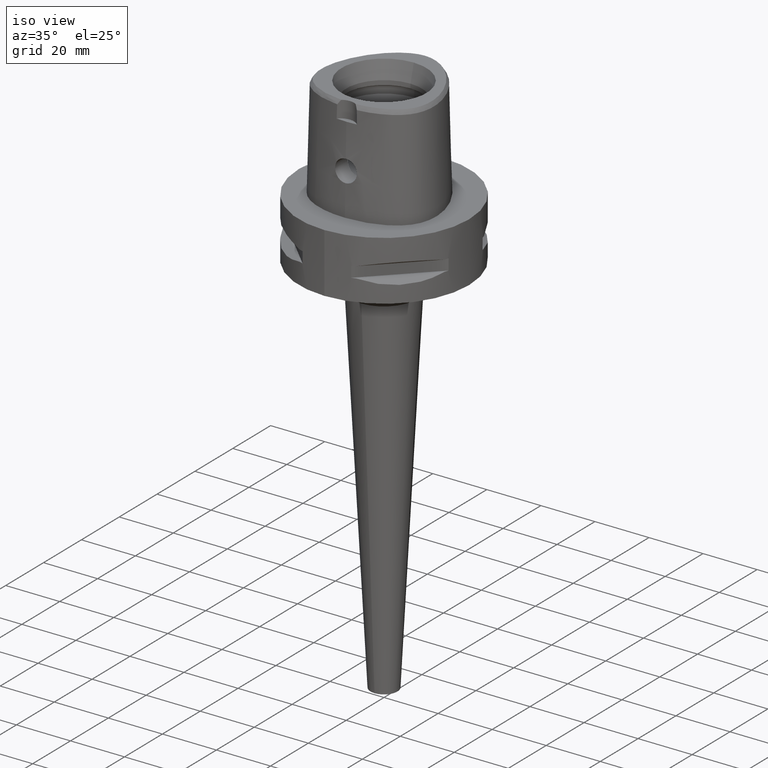
[diagram: clean part render]
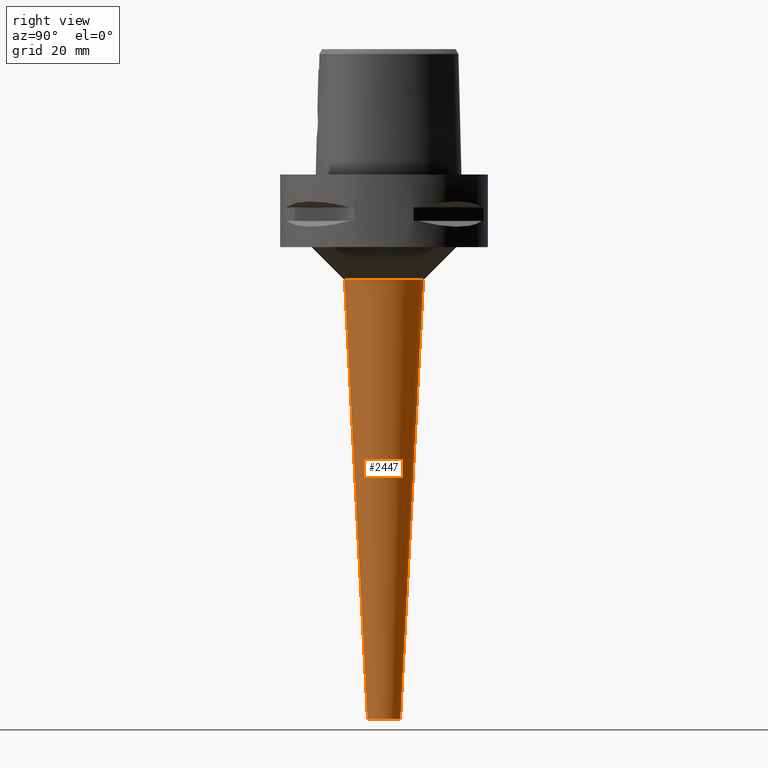
[diagram: tour spotlight — one face highlighted and labeled with its STEP entity id]
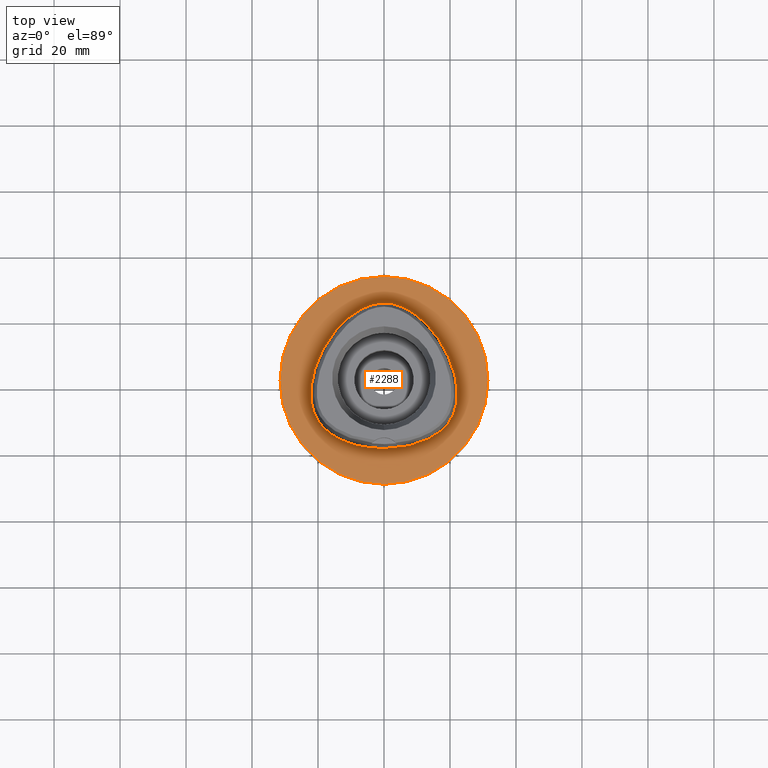
[diagram: tour spotlight — one face highlighted and labeled with its STEP entity id]
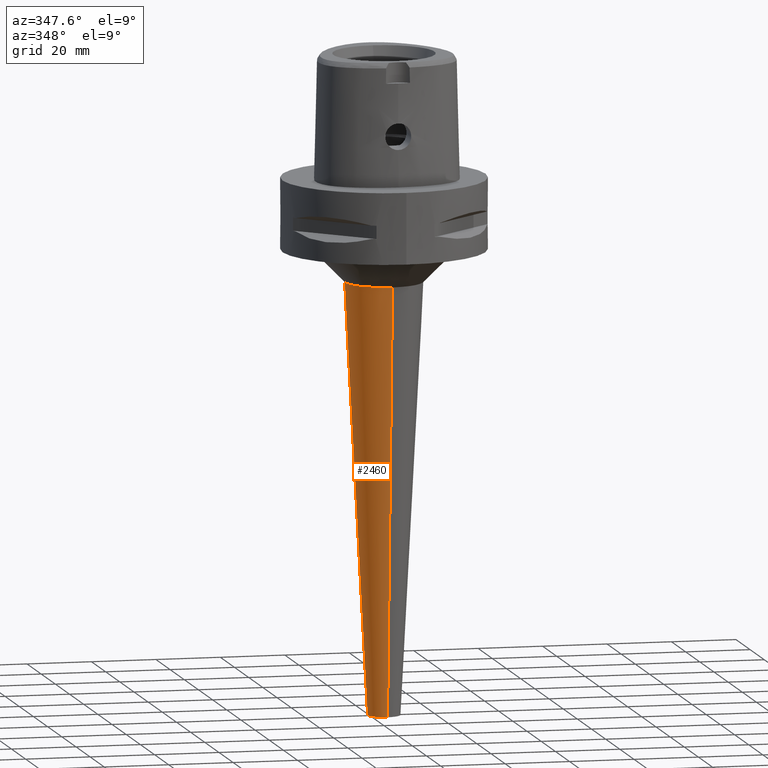
[diagram: tour spotlight — one face highlighted and labeled with its STEP entity id]
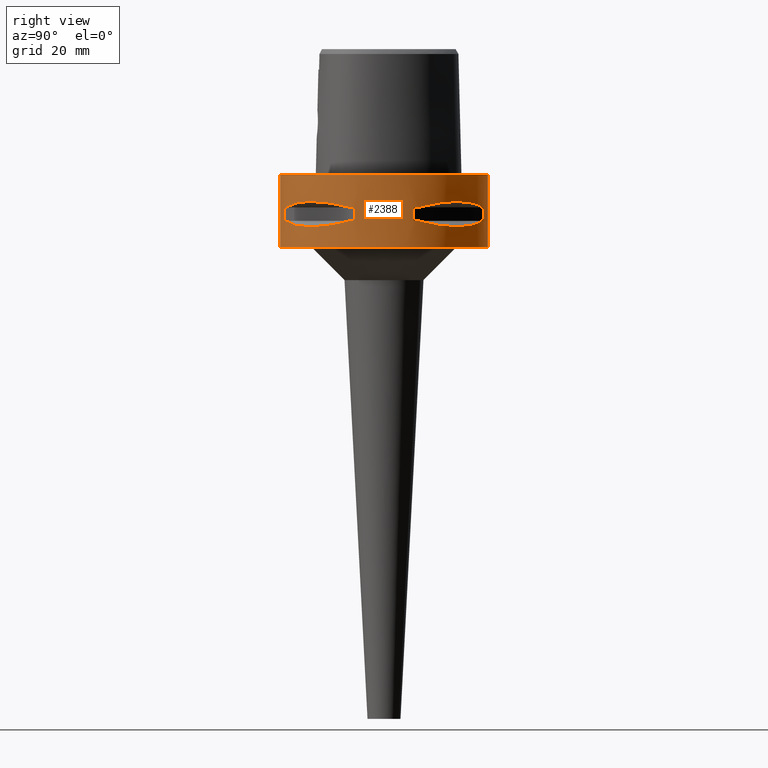
[diagram: tour spotlight — one face highlighted and labeled with its STEP entity id]
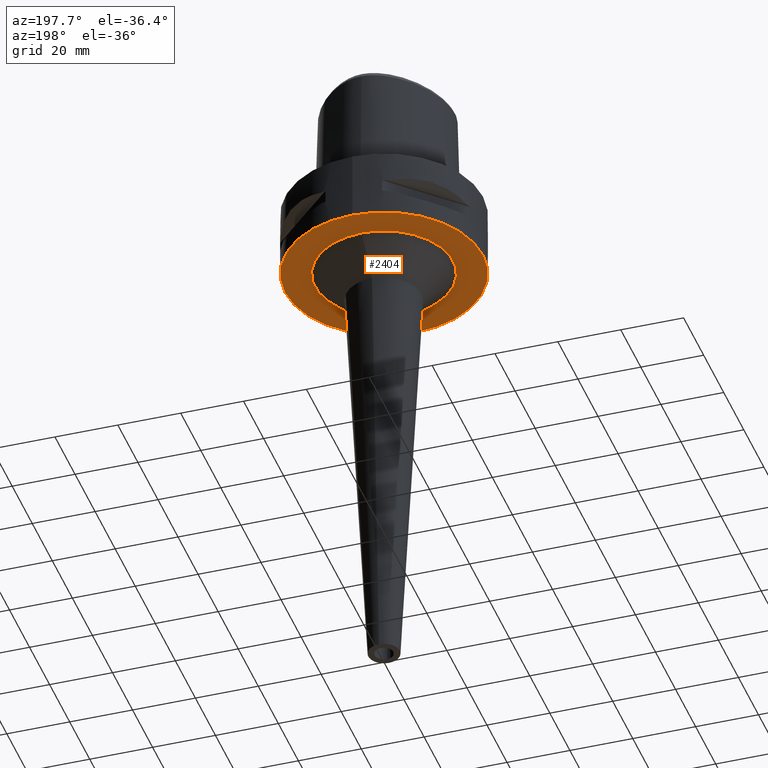
[diagram: tour spotlight — one face highlighted and labeled with its STEP entity id]
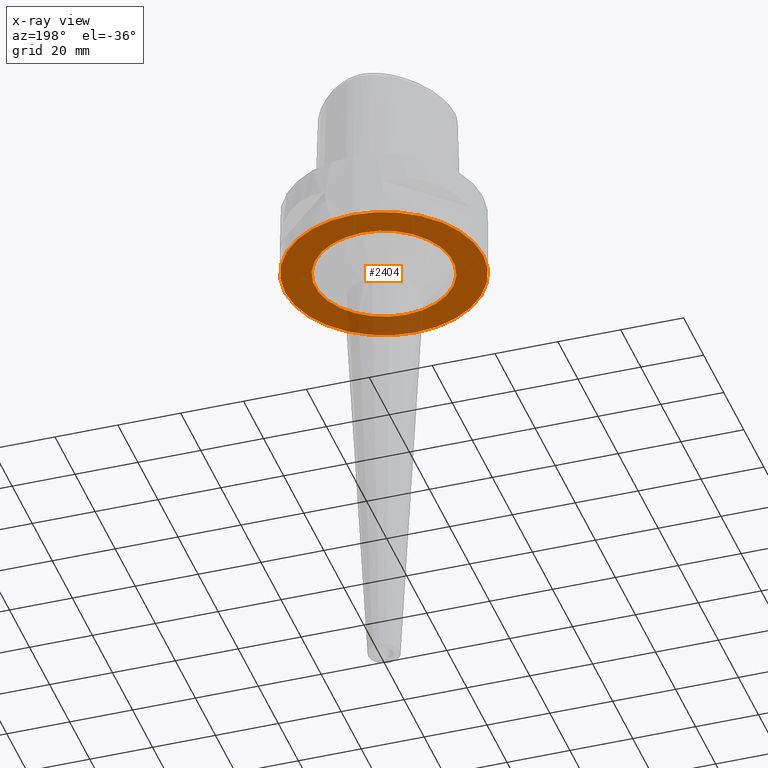
[diagram: x-ray of the same camera — body ghosted, this tour face saturated]
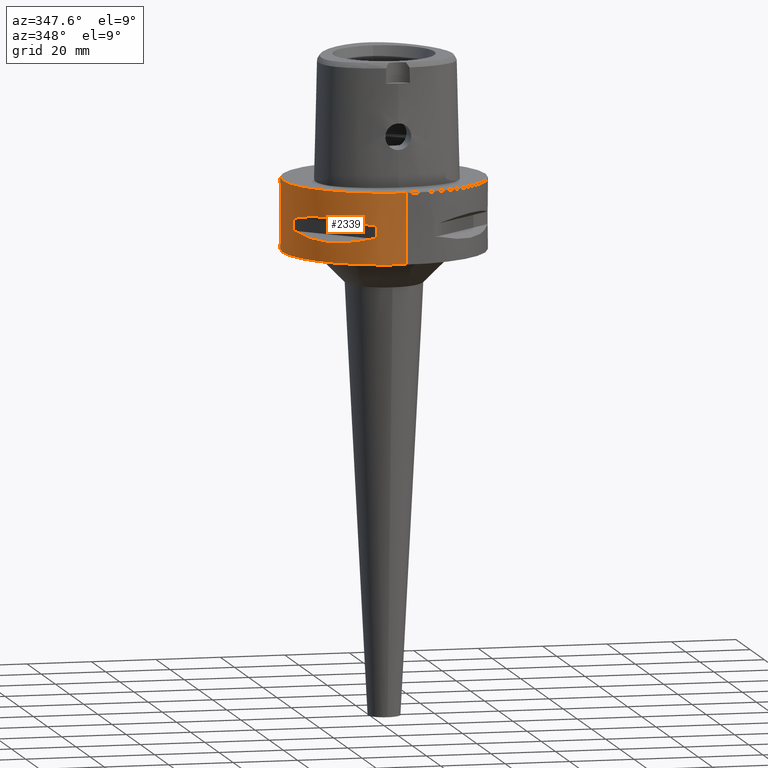
[diagram: tour spotlight — one face highlighted and labeled with its STEP entity id]
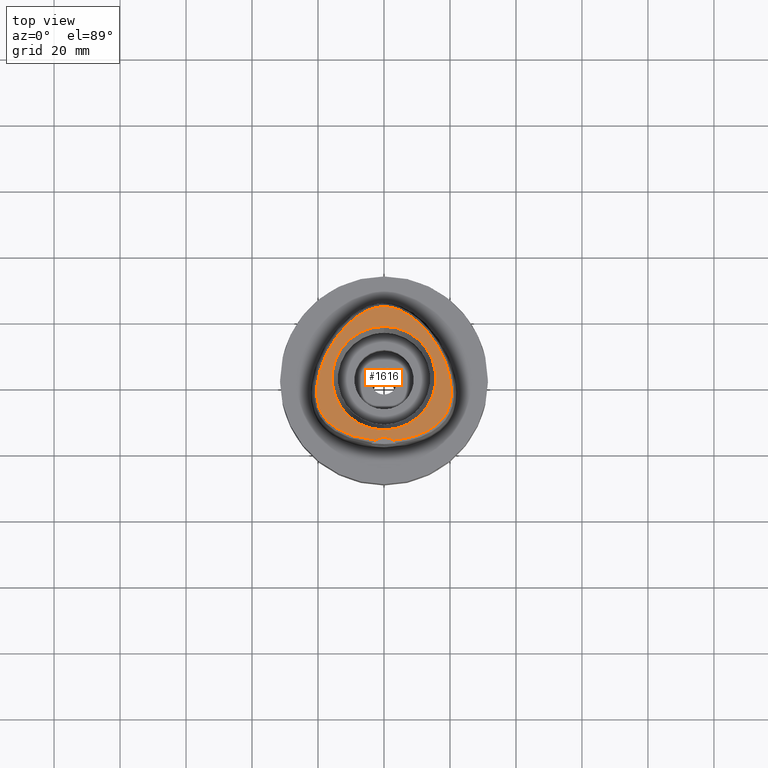
[diagram: tour spotlight — one face highlighted and labeled with its STEP entity id]
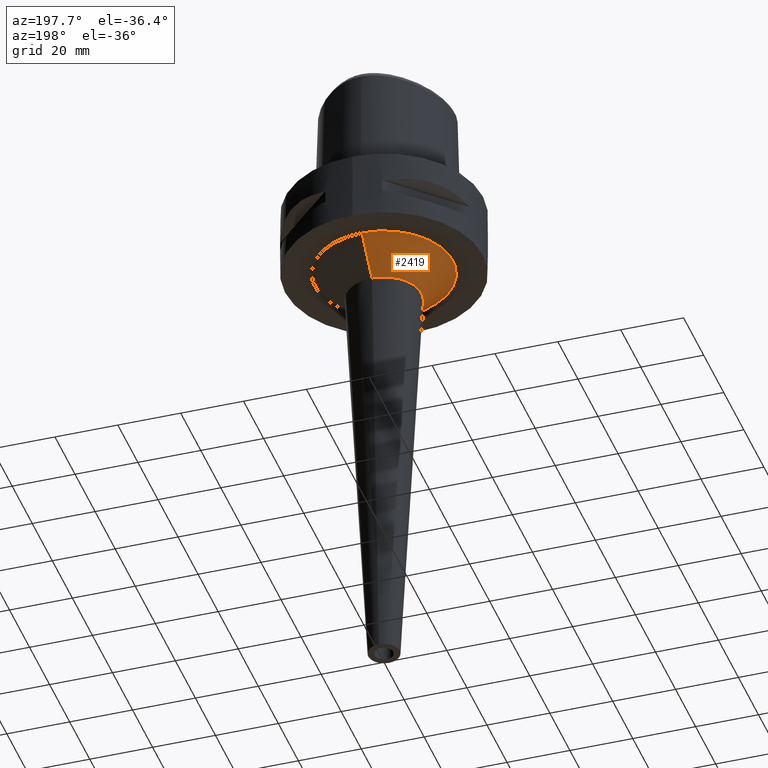
[diagram: tour spotlight — one face highlighted and labeled with its STEP entity id]
A machine part: a face-by-face anatomy tour. The part has 65 B-rep faces; the first image is the clean iso view, then the 8 largest visible faces are spotlighted one at a time (largest first), each with its STEP entity span.

Face 1 — right view, entity #2447. In plain terms, the highlighted conical surface has half-angle 3 deg.
Definition (entity closure, byte-faithful):
#539=DIRECTION('',(0.E0,-5.233595624293E-2,-9.986295347546E-1));
#540=VECTOR('',#539,1.331825220177E2);
#541=CARTESIAN_POINT('',(0.E0,1.197023464464E1,-3.2E1));
#542=LINE('',#541,#540);
#546=CARTESIAN_POINT('',(0.E0,0.E0,-3.2E1));
#547=DIRECTION('',(0.E0,0.E0,1.E0));
#548=DIRECTION('',(0.E0,-1.E0,0.E0));
#549=AXIS2_PLACEMENT_3D('',#546,#547,#548);
#554=DIRECTION('',(0.E0,5.233595624293E-2,-9.986295347546E-1));
#555=VECTOR('',#554,1.331825220177E2);
#556=CARTESIAN_POINT('',(0.E0,-1.197023464464E1,-3.2E1));
#557=LINE('',#556,#555);
#561=CARTESIAN_POINT('',(0.E0,0.E0,-1.65E2));
#562=DIRECTION('',(0.E0,0.E0,1.E0));
#563=DIRECTION('',(0.E0,-1.E0,0.E0));
#564=AXIS2_PLACEMENT_3D('',#561,#562,#563);
#1522=CARTESIAN_POINT('',(0.E0,1.197023464464E1,-3.2E1));
#1523=VERTEX_POINT('',#1522);
#1524=CARTESIAN_POINT('',(0.E0,-1.197023464464E1,-3.2E1));
#1525=VERTEX_POINT('',#1524);
#1526=CARTESIAN_POINT('',(0.E0,5.E0,-1.65E2));
#1527=VERTEX_POINT('',#1526);
#1528=CARTESIAN_POINT('',(0.E0,-5.E0,-1.65E2));
#1529=VERTEX_POINT('',#1528);
#2433=CARTESIAN_POINT('',(0.E0,0.E0,-9.85E1));
#2434=DIRECTION('',(0.E0,0.E0,1.E0));
#2435=DIRECTION('',(0.E0,1.E0,0.E0));
#2436=AXIS2_PLACEMENT_3D('',#2433,#2434,#2435);
#2437=CONICAL_SURFACE('',#2436,8.485117322322E0,3.E0);
#2439=ORIENTED_EDGE('',*,*,#2438,.T.);
#2441=ORIENTED_EDGE('',*,*,#2440,.F.);
#2443=ORIENTED_EDGE('',*,*,#2442,.F.);
#2444=ORIENTED_EDGE('',*,*,#2426,.T.);
#2445=EDGE_LOOP('',(#2439,#2441,#2443,#2444));
#2446=FACE_OUTER_BOUND('',#2445,.F.);
#550=CIRCLE('',#549,1.197023464464E1);
#565=CIRCLE('',#564,5.E0);
#2426=EDGE_CURVE('',#1525,#1523,#550,.T.);
#2438=EDGE_CURVE('',#1523,#1527,#542,.T.);
#2440=EDGE_CURVE('',#1529,#1527,#565,.T.);
#2442=EDGE_CURVE('',#1525,#1529,#557,.T.);
#2447=ADVANCED_FACE('',(#2446),#2437,.T.);

Face 2 — top view, entity #2288. In plain terms, the highlighted planar face has unit normal (0, 0, -1).
Definition (entity closure, byte-faithful):
#275=CARTESIAN_POINT('',(0.E0,1.325680160077E-14,0.E0));
#276=DIRECTION('',(0.E0,0.E0,-1.E0));
#277=DIRECTION('',(0.E0,-1.E0,0.E0));
#278=AXIS2_PLACEMENT_3D('',#275,#276,#277);
#283=CARTESIAN_POINT('',(0.E0,1.325680160077E-14,0.E0));
#284=DIRECTION('',(0.E0,0.E0,-1.E0));
#285=DIRECTION('',(0.E0,1.E0,0.E0));
#286=AXIS2_PLACEMENT_3D('',#283,#284,#285);
#291=CARTESIAN_POINT('',(-5.544119263659E-12,-2.0675E1,7.264559324464E-14));
#292=CARTESIAN_POINT('',(9.993560509798E-1,-2.0675E1,7.264559324464E-14));
#293=CARTESIAN_POINT('',(2.955454059953E0,-2.059182991098E1,
-3.371493715748E-14));
#294=CARTESIAN_POINT('',(5.793056832365E0,-2.023445547095E1,0.E0));
#295=CARTESIAN_POINT('',(8.440299845029E0,-1.966898990197E1,0.E0));
#296=CARTESIAN_POINT('',(1.082569887884E1,-1.893751788510E1,0.E0));
#297=CARTESIAN_POINT('',(1.292144293780E1,-1.808304144246E1,0.E0));
#298=CARTESIAN_POINT('',(1.473190987268E1,-1.714161088191E1,0.E0));
#299=CARTESIAN_POINT('',(1.628058086811E1,-1.613700341594E1,0.E0));
#300=CARTESIAN_POINT('',(1.758462319708E1,-1.509429163050E1,0.E0));
#301=CARTESIAN_POINT('',(1.868311493360E1,-1.401452497844E1,0.E0));
#302=CARTESIAN_POINT('',(1.959652438140E1,-1.290475345799E1,0.E0));
#303=CARTESIAN_POINT('',(2.036064678625E1,-1.173722907498E1,0.E0));
#304=CARTESIAN_POINT('',(2.098286737742E1,-1.049796407517E1,0.E0));
#305=CARTESIAN_POINT('',(2.148460262653E1,-9.152658909070E0,0.E0));
#306=CARTESIAN_POINT('',(2.186688955230E1,-7.668741930685E0,0.E0));
#307=CARTESIAN_POINT('',(2.211748022392E1,-6.011344606950E0,0.E0));
#308=CARTESIAN_POINT('',(2.221114513228E1,-4.165101131633E0,0.E0));
#309=CARTESIAN_POINT('',(2.211859909826E1,-2.119791264277E0,0.E0));
#310=CARTESIAN_POINT('',(2.180697303124E1,1.274638893074E-1,0.E0));
#311=CARTESIAN_POINT('',(2.124390727169E1,2.561688994165E0,0.E0));
#312=CARTESIAN_POINT('',(2.040432990039E1,5.142967568815E0,0.E0));
#313=CARTESIAN_POINT('',(1.928615762684E1,7.790527726071E0,0.E0));
#314=CARTESIAN_POINT('',(1.790818983488E1,1.041471447125E1,0.E0));
#315=CARTESIAN_POINT('',(1.631740085403E1,1.291115934797E1,0.E0));
#316=CARTESIAN_POINT('',(1.457981575214E1,1.519116277501E1,0.E0));
#317=CARTESIAN_POINT('',(1.276360468057E1,1.719471030503E1,0.E0));
#318=CARTESIAN_POINT('',(1.094031032691E1,1.888405274651E1,0.E0));
#319=CARTESIAN_POINT('',(9.153147211204E0,2.026455207171E1,0.E0));
#320=CARTESIAN_POINT('',(7.435015692265E0,2.135402119261E1,0.E0));
#321=CARTESIAN_POINT('',(5.795953209951E0,2.218530691809E1,0.E0));
#322=CARTESIAN_POINT('',(4.238113018428E0,2.278980944085E1,0.E0));
#323=CARTESIAN_POINT('',(2.755912777145E0,2.319591735050E1,0.E0));
#324=CARTESIAN_POINT('',(1.346169757095E0,2.342625517229E1,
-3.235809557040E-14));
#325=CARTESIAN_POINT('',(4.420725725818E-1,2.347499999999E1,
6.972200594646E-14));
#326=CARTESIAN_POINT('',(3.799139197506E-11,2.347499999999E1,
6.972200594646E-14));
#331=CARTESIAN_POINT('',(3.799139197506E-11,2.347499999999E1,
6.972200594646E-14));
#332=CARTESIAN_POINT('',(-4.425820475878E-1,2.347499999999E1,
6.972200594646E-14));
#333=CARTESIAN_POINT('',(-1.347662200040E0,2.342614583775E1,
-3.235809557040E-14));
#334=CARTESIAN_POINT('',(-2.758853381342E0,2.319531897184E1,0.E0));
#335=CARTESIAN_POINT('',(-4.242230104549E0,2.278848861890E1,0.E0));
#336=CARTESIAN_POINT('',(-5.801612667635E0,2.218285001682E1,0.E0));
#337=CARTESIAN_POINT('',(-7.442978404358E0,2.134957065587E1,0.E0));
#338=CARTESIAN_POINT('',(-9.163227561140E0,2.025756793929E1,0.E0));
#339=CARTESIAN_POINT('',(-1.095272870368E1,1.887364628884E1,0.E0));
#340=CARTESIAN_POINT('',(-1.277801152707E1,1.718022281640E1,0.E0));
#341=CARTESIAN_POINT('',(-1.459495771783E1,1.517303412729E1,0.E0));
#342=CARTESIAN_POINT('',(-1.633282642389E1,1.288911490603E1,0.E0));
#343=CARTESIAN_POINT('',(-1.792246770589E1,1.039015374661E1,0.E0));
#344=CARTESIAN_POINT('',(-1.929884579616E1,7.763682889804E0,0.E0));
#345=CARTESIAN_POINT('',(-2.041405626851E1,5.116842502056E0,0.E0));
#346=CARTESIAN_POINT('',(-2.125087139496E1,2.536440296266E0,0.E0));
#347=CARTESIAN_POINT('',(-2.181091904993E1,1.058134259895E-1,0.E0));
#348=CARTESIAN_POINT('',(-2.212049288494E1,-2.140142262062E0,0.E0));
#349=CARTESIAN_POINT('',(-2.221099399982E1,-4.183391986546E0,0.E0));
#350=CARTESIAN_POINT('',(-2.211611235615E1,-6.025168758480E0,0.E0));
#351=CARTESIAN_POINT('',(-2.186347175870E1,-7.686763478002E0,0.E0));
#352=CARTESIAN_POINT('',(-2.147797938097E1,-9.173911519513E0,0.E0));
#353=CARTESIAN_POINT('',(-2.097460780692E1,-1.051678122246E1,0.E0));
#354=CARTESIAN_POINT('',(-2.035325712307E1,-1.174865156376E1,0.E0));
#355=CARTESIAN_POINT('',(-1.960223723573E1,-1.289594780434E1,0.E0));
#356=CARTESIAN_POINT('',(-1.869579824321E1,-1.400010665431E1,0.E0));
#357=CARTESIAN_POINT('',(-1.760876310015E1,-1.507291202278E1,0.E0));
#358=CARTESIAN_POINT('',(-1.629860914140E1,-1.612432705675E1,0.E0));
#359=CARTESIAN_POINT('',(-1.475326852250E1,-1.712914698935E1,0.E0));
#360=CARTESIAN_POINT('',(-1.294126791582E1,-1.807406224244E1,0.E0));
#361=CARTESIAN_POINT('',(-1.084450933749E1,-1.893089849681E1,0.E0));
#362=CARTESIAN_POINT('',(-8.457239462537E0,-1.966475618658E1,0.E0));
#363=CARTESIAN_POINT('',(-5.803786146490E0,-2.023290404964E1,0.E0));
#364=CARTESIAN_POINT('',(-2.957577428885E0,-2.059182769325E1,
-3.371493715748E-14));
#365=CARTESIAN_POINT('',(-9.997112379900E-1,-2.0675E1,7.264559324464E-14));
#366=CARTESIAN_POINT('',(-5.544119263659E-12,-2.0675E1,7.264559324464E-14));
#1452=VERTEX_POINT('',#331);
#1453=VERTEX_POINT('',#366);
#1458=CARTESIAN_POINT('',(0.E0,-3.15E1,0.E0));
#1459=CARTESIAN_POINT('',(0.E0,3.15E1,0.E0));
#1460=VERTEX_POINT('',#1458);
#1461=VERTEX_POINT('',#1459);
#2272=CARTESIAN_POINT('',(0.E0,1.224646799147E-14,0.E0));
#2273=DIRECTION('',(0.E0,0.E0,-1.E0));
#2274=DIRECTION('',(0.E0,-1.E0,0.E0));
#2275=AXIS2_PLACEMENT_3D('',#2272,#2273,#2274);
#2276=PLANE('',#2275);
#2278=ORIENTED_EDGE('',*,*,#2277,.T.);
#2280=ORIENTED_EDGE('',*,*,#2279,.T.);
#2281=EDGE_LOOP('',(#2278,#2280));
#2282=FACE_OUTER_BOUND('',#2281,.F.);
#2284=ORIENTED_EDGE('',*,*,#2283,.T.);
#2285=ORIENTED_EDGE('',*,*,#2255,.T.);
#2286=EDGE_LOOP('',(#2284,#2285));
#2287=FACE_BOUND('',#2286,.F.);
#279=CIRCLE('',#278,3.15E1);
#287=CIRCLE('',#286,3.15E1);
#327=B_SPLINE_CURVE_WITH_KNOTS('',3,(#291,#292,#293,#294,#295,#296,#297,#298,
#299,#300,#301,#302,#303,#304,#305,#306,#307,#308,#309,#310,#311,#312,#313,#314,
#315,#316,#317,#318,#319,#320,#321,#322,#323,#324,#325,#326),.UNSPECIFIED.,.F.,
.F.,(4,1,1,1,1,1,1,1,1,1,1,1,1,1,1,1,1,1,1,1,1,1,1,1,1,1,1,1,1,1,1,1,1,4),(0.E0,
3.030303030303E-2,6.060606060606E-2,9.090909090909E-2,1.212121212121E-1,
1.515151515152E-1,1.818181818182E-1,2.121212121212E-1,2.424242424242E-1,
2.727272727273E-1,3.030303030303E-1,3.333333333333E-1,3.636363636364E-1,
3.939393939394E-1,4.242424242424E-1,4.545454545455E-1,4.848484848485E-1,
5.151515151515E-1,5.454545454545E-1,5.757575757576E-1,6.060606060606E-1,
6.363636363636E-1,6.666666666667E-1,6.969696969697E-1,7.272727272727E-1,
7.575757575758E-1,7.878787878788E-1,8.181818181818E-1,8.484848484848E-1,
8.787878787879E-1,9.090909090909E-1,9.393939393939E-1,9.696969696970E-1,1.E0),
.UNSPECIFIED.);
#367=B_SPLINE_CURVE_WITH_KNOTS('',3,(#331,#332,#333,#334,#335,#336,#337,#338,
#339,#340,#341,#342,#343,#344,#345,#346,#347,#348,#349,#350,#351,#352,#353,#354,
#355,#356,#357,#358,#359,#360,#361,#362,#363,#364,#365,#366),.UNSPECIFIED.,.F.,
.F.,(4,1,1,1,1,1,1,1,1,1,1,1,1,1,1,1,1,1,1,1,1,1,1,1,1,1,1,1,1,1,1,1,1,4),(0.E0,
3.030303030303E-2,6.060606060606E-2,9.090909090909E-2,1.212121212121E-1,
1.515151515152E-1,1.818181818182E-1,2.121212121212E-1,2.424242424242E-1,
2.727272727273E-1,3.030303030303E-1,3.333333333333E-1,3.636363636364E-1,
3.939393939394E-1,4.242424242424E-1,4.545454545455E-1,4.848484848485E-1,
5.151515151515E-1,5.454545454545E-1,5.757575757576E-1,6.060606060606E-1,
6.363636363636E-1,6.666666666667E-1,6.969696969697E-1,7.272727272727E-1,
7.575757575758E-1,7.878787878788E-1,8.181818181818E-1,8.484848484848E-1,
8.787878787879E-1,9.090909090909E-1,9.393939393939E-1,9.696969696970E-1,1.E0),
.UNSPECIFIED.);
#2255=EDGE_CURVE('',#1452,#1453,#367,.T.);
#2277=EDGE_CURVE('',#1460,#1461,#279,.T.);
#2279=EDGE_CURVE('',#1461,#1460,#287,.T.);
#2283=EDGE_CURVE('',#1453,#1452,#327,.T.);
#2288=ADVANCED_FACE('',(#2282,#2287),#2276,.F.);

Face 3 — auxiliary view, entity #2460. In plain terms, the highlighted conical surface has half-angle 3 deg.
Definition (entity closure, byte-faithful):
#524=CARTESIAN_POINT('',(0.E0,0.E0,-3.2E1));
#525=DIRECTION('',(0.E0,0.E0,-1.E0));
#526=DIRECTION('',(0.E0,-1.E0,0.E0));
#527=AXIS2_PLACEMENT_3D('',#524,#525,#526);
#539=DIRECTION('',(0.E0,-5.233595624293E-2,-9.986295347546E-1));
#540=VECTOR('',#539,1.331825220177E2);
#541=CARTESIAN_POINT('',(0.E0,1.197023464464E1,-3.2E1));
#542=LINE('',#541,#540);
#554=DIRECTION('',(0.E0,5.233595624293E-2,-9.986295347546E-1));
#555=VECTOR('',#554,1.331825220177E2);
#556=CARTESIAN_POINT('',(0.E0,-1.197023464464E1,-3.2E1));
#557=LINE('',#556,#555);
#569=CARTESIAN_POINT('',(0.E0,0.E0,-1.65E2));
#570=DIRECTION('',(0.E0,0.E0,1.E0));
#571=DIRECTION('',(0.E0,1.E0,0.E0));
#572=AXIS2_PLACEMENT_3D('',#569,#570,#571);
#1522=CARTESIAN_POINT('',(0.E0,1.197023464464E1,-3.2E1));
#1523=VERTEX_POINT('',#1522);
#1524=CARTESIAN_POINT('',(0.E0,-1.197023464464E1,-3.2E1));
#1525=VERTEX_POINT('',#1524);
#1526=CARTESIAN_POINT('',(0.E0,5.E0,-1.65E2));
#1527=VERTEX_POINT('',#1526);
#1528=CARTESIAN_POINT('',(0.E0,-5.E0,-1.65E2));
#1529=VERTEX_POINT('',#1528);
#2448=CARTESIAN_POINT('',(0.E0,0.E0,-9.85E1));
#2449=DIRECTION('',(0.E0,0.E0,1.E0));
#2450=DIRECTION('',(0.E0,1.E0,0.E0));
#2451=AXIS2_PLACEMENT_3D('',#2448,#2449,#2450);
#2452=CONICAL_SURFACE('',#2451,8.485117322322E0,3.E0);
#2453=ORIENTED_EDGE('',*,*,#2438,.F.);
#2454=ORIENTED_EDGE('',*,*,#2415,.F.);
#2455=ORIENTED_EDGE('',*,*,#2442,.T.);
#2457=ORIENTED_EDGE('',*,*,#2456,.F.);
#2458=EDGE_LOOP('',(#2453,#2454,#2455,#2457));
#2459=FACE_OUTER_BOUND('',#2458,.F.);
#528=CIRCLE('',#527,1.197023464464E1);
#573=CIRCLE('',#572,5.E0);
#2415=EDGE_CURVE('',#1525,#1523,#528,.T.);
#2438=EDGE_CURVE('',#1523,#1527,#542,.T.);
#2442=EDGE_CURVE('',#1525,#1529,#557,.T.);
#2456=EDGE_CURVE('',#1527,#1529,#573,.T.);
#2460=ADVANCED_FACE('',(#2459),#2452,.T.);

Face 4 — right view, entity #2388. In plain terms, the highlighted cylindrical surface (partial cylindrical patch) has radius 31.5 mm, axis along (0, 0, -1).
Definition (entity closure, byte-faithful):
#283=CARTESIAN_POINT('',(0.E0,1.325680160077E-14,0.E0));
#284=DIRECTION('',(0.E0,0.E0,-1.E0));
#285=DIRECTION('',(0.E0,1.E0,0.E0));
#286=AXIS2_PLACEMENT_3D('',#283,#284,#285);
#371=DIRECTION('',(0.E0,0.E0,-1.E0));
#372=VECTOR('',#371,2.2E1);
#373=CARTESIAN_POINT('',(0.E0,-3.15E1,0.E0));
#374=LINE('',#373,#372);
#428=DIRECTION('',(0.E0,0.E0,-1.E0));
#429=VECTOR('',#428,2.2E1);
#430=CARTESIAN_POINT('',(0.E0,3.15E1,0.E0));
#431=LINE('',#430,#429);
#435=DIRECTION('',(0.E0,0.E0,-1.E0));
#436=VECTOR('',#435,4.1E0);
#437=CARTESIAN_POINT('',(8.981198972017E0,-3.019251670572E1,-9.95E0));
#438=LINE('',#437,#436);
#442=CARTESIAN_POINT('',(1.044775724750E1,-2.971690375018E1,-1.405E1));
#443=CARTESIAN_POINT('',(1.282388988809E1,-2.888151197365E1,-1.467900482380E1));
#444=CARTESIAN_POINT('',(1.711282138769E1,-2.674739463903E1,-1.555870402293E1));
#445=CARTESIAN_POINT('',(2.244574140438E1,-2.244574140438E1,-1.597971692371E1));
#446=CARTESIAN_POINT('',(2.674739463903E1,-1.711282138769E1,-1.555870402293E1));
#447=CARTESIAN_POINT('',(2.888151197365E1,-1.282388988809E1,-1.467900482380E1));
#448=CARTESIAN_POINT('',(2.971690375018E1,-1.044775724750E1,-1.405E1));
#453=DIRECTION('',(0.E0,0.E0,1.E0));
#454=VECTOR('',#453,4.1E0);
#455=CARTESIAN_POINT('',(3.019251670572E1,-8.981198972017E0,-1.405E1));
#456=LINE('',#455,#454);
#460=DIRECTION('',(0.E0,0.E0,-1.E0));
#461=VECTOR('',#460,4.1E0);
#462=CARTESIAN_POINT('',(3.019251670572E1,8.981198972017E0,-9.95E0));
#463=LINE('',#462,#461);
#467=CARTESIAN_POINT('',(2.971690375018E1,1.044775724750E1,-1.405E1));
#468=CARTESIAN_POINT('',(2.888151197365E1,1.282388988809E1,-1.467900482380E1));
#469=CARTESIAN_POINT('',(2.674739463903E1,1.711282138769E1,-1.555870402293E1));
#470=CARTESIAN_POINT('',(2.244574140438E1,2.244574140438E1,-1.597971692371E1));
#471=CARTESIAN_POINT('',(1.711282138769E1,2.674739463903E1,-1.555870402293E1));
#472=CARTESIAN_POINT('',(1.282388988809E1,2.888151197365E1,-1.467900482380E1));
#473=CARTESIAN_POINT('',(1.044775724750E1,2.971690375018E1,-1.405E1));
#478=DIRECTION('',(0.E0,0.E0,1.E0));
#479=VECTOR('',#478,4.1E0);
#480=CARTESIAN_POINT('',(8.981198972017E0,3.019251670572E1,-1.405E1));
#481=LINE('',#480,#479);
#485=CARTESIAN_POINT('',(0.E0,1.325680160077E-14,-2.2E1));
#486=DIRECTION('',(0.E0,0.E0,1.E0));
#487=DIRECTION('',(0.E0,-1.E0,0.E0));
#488=AXIS2_PLACEMENT_3D('',#485,#486,#487);
#1148=CARTESIAN_POINT('',(1.044775724750E1,-2.971690375018E1,
-9.950000000001E0));
#1149=CARTESIAN_POINT('',(1.282388988809E1,-2.888151197365E1,
-9.320995176200E0));
#1150=CARTESIAN_POINT('',(1.711282138769E1,-2.674739463903E1,
-8.441295977077E0));
#1151=CARTESIAN_POINT('',(2.244574140438E1,-2.244574140438E1,
-8.020283076297E0));
#1152=CARTESIAN_POINT('',(2.674739463903E1,-1.711282138769E1,
-8.441295977077E0));
#1153=CARTESIAN_POINT('',(2.888151197365E1,-1.282388988809E1,
-9.320995176200E0));
#1154=CARTESIAN_POINT('',(2.971690375018E1,-1.044775724750E1,
-9.950000000001E0));
#1159=CARTESIAN_POINT('',(0.E0,1.325680160077E-14,-9.95E0));
#1160=DIRECTION('',(0.E0,0.E0,1.E0));
#1161=DIRECTION('',(9.433937698469E-1,-3.316748332541E-1,0.E0));
#1162=AXIS2_PLACEMENT_3D('',#1159,#1160,#1161);
#1167=CARTESIAN_POINT('',(0.E0,1.325680160077E-14,-9.95E0));
#1168=DIRECTION('',(0.E0,0.E0,1.E0));
#1169=DIRECTION('',(2.851174276832E-1,-9.584925938323E-1,0.E0));
#1170=AXIS2_PLACEMENT_3D('',#1167,#1168,#1169);
#1189=CARTESIAN_POINT('',(0.E0,1.325680160077E-14,-1.405E1));
#1190=DIRECTION('',(0.E0,0.E0,-1.E0));
#1191=DIRECTION('',(9.584925938323E-1,-2.851174276832E-1,0.E0));
#1192=AXIS2_PLACEMENT_3D('',#1189,#1190,#1191);
#1197=CARTESIAN_POINT('',(0.E0,1.325680160077E-14,-1.405E1));
#1198=DIRECTION('',(0.E0,0.E0,-1.E0));
#1199=DIRECTION('',(3.316748332541E-1,-9.433937698469E-1,0.E0));
#1200=AXIS2_PLACEMENT_3D('',#1197,#1198,#1199);
#1219=CARTESIAN_POINT('',(2.971690375018E1,1.044775724750E1,-9.950000000001E0));
#1220=CARTESIAN_POINT('',(2.888151197365E1,1.282388988809E1,-9.320995176200E0));
#1221=CARTESIAN_POINT('',(2.674739463903E1,1.711282138769E1,-8.441295977077E0));
#1222=CARTESIAN_POINT('',(2.244574140438E1,2.244574140438E1,-8.020283076297E0));
#1223=CARTESIAN_POINT('',(1.711282138769E1,2.674739463903E1,-8.441295977077E0));
#1224=CARTESIAN_POINT('',(1.282388988809E1,2.888151197365E1,-9.320995176200E0));
#1225=CARTESIAN_POINT('',(1.044775724750E1,2.971690375018E1,-9.950000000001E0));
#1230=CARTESIAN_POINT('',(0.E0,1.325680160077E-14,-9.95E0));
#1231=DIRECTION('',(0.E0,0.E0,1.E0));
#1232=DIRECTION('',(3.316748332541E-1,9.433937698469E-1,0.E0));
#1233=AXIS2_PLACEMENT_3D('',#1230,#1231,#1232);
#1238=CARTESIAN_POINT('',(0.E0,1.325680160077E-14,-9.95E0));
#1239=DIRECTION('',(0.E0,0.E0,1.E0));
#1240=DIRECTION('',(9.584925938323E-1,2.851174276832E-1,0.E0));
#1241=AXIS2_PLACEMENT_3D('',#1238,#1239,#1240);
#1260=CARTESIAN_POINT('',(0.E0,1.325680160077E-14,-1.405E1));
#1261=DIRECTION('',(0.E0,0.E0,-1.E0));
#1262=DIRECTION('',(2.851174276832E-1,9.584925938323E-1,0.E0));
#1263=AXIS2_PLACEMENT_3D('',#1260,#1261,#1262);
#1268=CARTESIAN_POINT('',(0.E0,1.325680160077E-14,-1.405E1));
#1269=DIRECTION('',(0.E0,0.E0,-1.E0));
#1270=DIRECTION('',(9.433937698469E-1,3.316748332541E-1,0.E0));
#1271=AXIS2_PLACEMENT_3D('',#1268,#1269,#1270);
#1458=CARTESIAN_POINT('',(0.E0,-3.15E1,0.E0));
#1459=CARTESIAN_POINT('',(0.E0,3.15E1,0.E0));
#1460=VERTEX_POINT('',#1458);
#1461=VERTEX_POINT('',#1459);
#1462=CARTESIAN_POINT('',(0.E0,3.15E1,-2.2E1));
#1463=VERTEX_POINT('',#1462);
#1464=CARTESIAN_POINT('',(0.E0,-3.15E1,-2.2E1));
#1465=VERTEX_POINT('',#1464);
#1492=VERTEX_POINT('',#1148);
#1493=VERTEX_POINT('',#1154);
#1494=CARTESIAN_POINT('',(8.981198972020E0,-3.019251670572E1,-9.95E0));
#1495=VERTEX_POINT('',#1494);
#1496=CARTESIAN_POINT('',(8.981198972017E0,-3.019251670572E1,-1.405E1));
#1497=VERTEX_POINT('',#1496);
#1498=CARTESIAN_POINT('',(1.044775724750E1,-2.971690375018E1,-1.405E1));
#1499=VERTEX_POINT('',#1498);
#1500=VERTEX_POINT('',#448);
#1501=CARTESIAN_POINT('',(3.019251670572E1,-8.981198972020E0,-1.405E1));
#1502=VERTEX_POINT('',#1501);
#1503=CARTESIAN_POINT('',(3.019251670572E1,-8.981198972017E0,-9.95E0));
#1504=VERTEX_POINT('',#1503);
#1505=VERTEX_POINT('',#1219);
#1506=VERTEX_POINT('',#1225);
#1507=CARTESIAN_POINT('',(3.019251670572E1,8.981198972020E0,-9.95E0));
#1508=VERTEX_POINT('',#1507);
#1509=CARTESIAN_POINT('',(3.019251670572E1,8.981198972017E0,-1.405E1));
#1510=VERTEX_POINT('',#1509);
#1511=CARTESIAN_POINT('',(2.971690375018E1,1.044775724750E1,-1.405E1));
#1512=VERTEX_POINT('',#1511);
#1513=VERTEX_POINT('',#473);
#1514=CARTESIAN_POINT('',(8.981198972020E0,3.019251670572E1,-1.405E1));
#1515=VERTEX_POINT('',#1514);
#1516=CARTESIAN_POINT('',(8.981198972017E0,3.019251670572E1,-9.95E0));
#1517=VERTEX_POINT('',#1516);
#2340=CARTESIAN_POINT('',(0.E0,1.325680160077E-14,8.25E0));
#2341=DIRECTION('',(0.E0,0.E0,-1.E0));
#2342=DIRECTION('',(0.E0,-1.E0,0.E0));
#2343=AXIS2_PLACEMENT_3D('',#2340,#2341,#2342);
#2344=CYLINDRICAL_SURFACE('',#2343,3.15E1);
#2345=ORIENTED_EDGE('',*,*,#2294,.T.);
#2347=ORIENTED_EDGE('',*,*,#2346,.F.);
#2348=ORIENTED_EDGE('',*,*,#2297,.F.);
#2349=ORIENTED_EDGE('',*,*,#2279,.F.);
#2350=EDGE_LOOP('',(#2345,#2347,#2348,#2349));
#2351=FACE_OUTER_BOUND('',#2350,.F.);
#2353=ORIENTED_EDGE('',*,*,#2352,.F.);
#2355=ORIENTED_EDGE('',*,*,#2354,.F.);
#2357=ORIENTED_EDGE('',*,*,#2356,.T.);
#2359=ORIENTED_EDGE('',*,*,#2358,.F.);
#2361=ORIENTED_EDGE('',*,*,#2360,.T.);
#2363=ORIENTED_EDGE('',*,*,#2362,.F.);
#2365=ORIENTED_EDGE('',*,*,#2364,.T.);
#2367=ORIENTED_EDGE('',*,*,#2366,.F.);
#2368=EDGE_LOOP('',(#2353,#2355,#2357,#2359,#2361,#2363,#2365,#2367));
#2369=FACE_BOUND('',#2368,.F.);
#2371=ORIENTED_EDGE('',*,*,#2370,.F.);
#2373=ORIENTED_EDGE('',*,*,#2372,.F.);
#2375=ORIENTED_EDGE('',*,*,#2374,.T.);
#2377=ORIENTED_EDGE('',*,*,#2376,.F.);
#2379=ORIENTED_EDGE('',*,*,#2378,.T.);
#2381=ORIENTED_EDGE('',*,*,#2380,.F.);
#2383=ORIENTED_EDGE('',*,*,#2382,.T.);
#2385=ORIENTED_EDGE('',*,*,#2384,.F.);
#2386=EDGE_LOOP('',(#2371,#2373,#2375,#2377,#2379,#2381,#2383,#2385));
#2387=FACE_BOUND('',#2386,.F.);
#287=CIRCLE('',#286,3.15E1);
#449=B_SPLINE_CURVE_WITH_KNOTS('',3,(#442,#443,#444,#445,#446,#447,#448),
.UNSPECIFIED.,.F.,.F.,(4,1,1,1,4),(0.E0,2.5E-1,5.E-1,7.5E-1,1.E0),
.UNSPECIFIED.);
#474=B_SPLINE_CURVE_WITH_KNOTS('',3,(#467,#468,#469,#470,#471,#472,#473),
.UNSPECIFIED.,.F.,.F.,(4,1,1,1,4),(0.E0,2.5E-1,5.E-1,7.5E-1,1.E0),
.UNSPECIFIED.);
#489=CIRCLE('',#488,3.15E1);
#1155=B_SPLINE_CURVE_WITH_KNOTS('',3,(#1148,#1149,#1150,#1151,#1152,#1153,
#1154),.UNSPECIFIED.,.F.,.F.,(4,1,1,1,4),(0.E0,2.5E-1,5.E-1,7.5E-1,1.E0),
.UNSPECIFIED.);
#1163=CIRCLE('',#1162,3.15E1);
#1171=CIRCLE('',#1170,3.15E1);
#1193=CIRCLE('',#1192,3.15E1);
#1201=CIRCLE('',#1200,3.15E1);
#1226=B_SPLINE_CURVE_WITH_KNOTS('',3,(#1219,#1220,#1221,#1222,#1223,#1224,
#1225),.UNSPECIFIED.,.F.,.F.,(4,1,1,1,4),(0.E0,2.5E-1,5.E-1,7.5E-1,1.E0),
.UNSPECIFIED.);
#1234=CIRCLE('',#1233,3.15E1);
#1242=CIRCLE('',#1241,3.15E1);
#1264=CIRCLE('',#1263,3.15E1);
#1272=CIRCLE('',#1271,3.15E1);
#2279=EDGE_CURVE('',#1461,#1460,#287,.T.);
#2294=EDGE_CURVE('',#1461,#1463,#431,.T.);
#2297=EDGE_CURVE('',#1460,#1465,#374,.T.);
#2346=EDGE_CURVE('',#1465,#1463,#489,.T.);
#2352=EDGE_CURVE('',#1492,#1493,#1155,.T.);
#2354=EDGE_CURVE('',#1495,#1492,#1171,.T.);
#2356=EDGE_CURVE('',#1495,#1497,#438,.T.);
#2358=EDGE_CURVE('',#1499,#1497,#1201,.T.);
#2360=EDGE_CURVE('',#1499,#1500,#449,.T.);
#2362=EDGE_CURVE('',#1502,#1500,#1193,.T.);
#2364=EDGE_CURVE('',#1502,#1504,#456,.T.);
#2366=EDGE_CURVE('',#1493,#1504,#1163,.T.);
#2370=EDGE_CURVE('',#1505,#1506,#1226,.T.);
#2372=EDGE_CURVE('',#1508,#1505,#1242,.T.);
#2374=EDGE_CURVE('',#1508,#1510,#463,.T.);
#2376=EDGE_CURVE('',#1512,#1510,#1272,.T.);
#2378=EDGE_CURVE('',#1512,#1513,#474,.T.);
#2380=EDGE_CURVE('',#1515,#1513,#1264,.T.);
#2382=EDGE_CURVE('',#1515,#1517,#481,.T.);
#2384=EDGE_CURVE('',#1506,#1517,#1234,.T.);
#2388=ADVANCED_FACE('',(#2351,#2369,#2387),#2344,.T.);

Face 5 — auxiliary view, entity #2404. An x-ray twin of the same camera follows (body ghosted, this face saturated) — the face is partly hidden behind the body. In plain terms, the highlighted planar face has unit normal (0, 0, -1).
Definition (entity closure, byte-faithful):
#485=CARTESIAN_POINT('',(0.E0,1.325680160077E-14,-2.2E1));
#486=DIRECTION('',(0.E0,0.E0,1.E0));
#487=DIRECTION('',(0.E0,-1.E0,0.E0));
#488=AXIS2_PLACEMENT_3D('',#485,#486,#487);
#493=CARTESIAN_POINT('',(0.E0,1.325680160077E-14,-2.2E1));
#494=DIRECTION('',(0.E0,0.E0,1.E0));
#495=DIRECTION('',(0.E0,1.E0,0.E0));
#496=AXIS2_PLACEMENT_3D('',#493,#494,#495);
#501=CARTESIAN_POINT('',(0.E0,0.E0,-2.2E1));
#502=DIRECTION('',(0.E0,0.E0,-1.E0));
#503=DIRECTION('',(0.E0,-1.E0,0.E0));
#504=AXIS2_PLACEMENT_3D('',#501,#502,#503);
#509=CARTESIAN_POINT('',(0.E0,0.E0,-2.2E1));
#510=DIRECTION('',(0.E0,0.E0,-1.E0));
#511=DIRECTION('',(0.E0,1.E0,0.E0));
#512=AXIS2_PLACEMENT_3D('',#509,#510,#511);
#1462=CARTESIAN_POINT('',(0.E0,3.15E1,-2.2E1));
#1463=VERTEX_POINT('',#1462);
#1464=CARTESIAN_POINT('',(0.E0,-3.15E1,-2.2E1));
#1465=VERTEX_POINT('',#1464);
#1518=CARTESIAN_POINT('',(0.E0,-2.197023464464E1,-2.2E1));
#1519=CARTESIAN_POINT('',(0.E0,2.197023464464E1,-2.2E1));
#1520=VERTEX_POINT('',#1518);
#1521=VERTEX_POINT('',#1519);
#2389=CARTESIAN_POINT('',(0.E0,0.E0,-2.2E1));
#2390=DIRECTION('',(0.E0,0.E0,-1.E0));
#2391=DIRECTION('',(0.E0,-1.E0,0.E0));
#2392=AXIS2_PLACEMENT_3D('',#2389,#2390,#2391);
#2393=PLANE('',#2392);
#2394=ORIENTED_EDGE('',*,*,#2346,.T.);
#2395=ORIENTED_EDGE('',*,*,#2299,.T.);
#2396=EDGE_LOOP('',(#2394,#2395));
#2397=FACE_OUTER_BOUND('',#2396,.F.);
#2399=ORIENTED_EDGE('',*,*,#2398,.T.);
#2401=ORIENTED_EDGE('',*,*,#2400,.T.);
#2402=EDGE_LOOP('',(#2399,#2401));
#2403=FACE_BOUND('',#2402,.F.);
#489=CIRCLE('',#488,3.15E1);
#497=CIRCLE('',#496,3.15E1);
#505=CIRCLE('',#504,2.197023464464E1);
#513=CIRCLE('',#512,2.197023464464E1);
#2299=EDGE_CURVE('',#1463,#1465,#497,.T.);
#2346=EDGE_CURVE('',#1465,#1463,#489,.T.);
#2398=EDGE_CURVE('',#1520,#1521,#505,.T.);
#2400=EDGE_CURVE('',#1521,#1520,#513,.T.);
#2404=ADVANCED_FACE('',(#2397,#2403),#2393,.T.);

Face 6 — auxiliary view, entity #2339. In plain terms, the highlighted cylindrical surface (partial cylindrical patch) has radius 31.5 mm, axis along (0, 0, -1).
Definition (entity closure, byte-faithful):
#275=CARTESIAN_POINT('',(0.E0,1.325680160077E-14,0.E0));
#276=DIRECTION('',(0.E0,0.E0,-1.E0));
#277=DIRECTION('',(0.E0,-1.E0,0.E0));
#278=AXIS2_PLACEMENT_3D('',#275,#276,#277);
#371=DIRECTION('',(0.E0,0.E0,-1.E0));
#372=VECTOR('',#371,2.2E1);
#373=CARTESIAN_POINT('',(0.E0,-3.15E1,0.E0));
#374=LINE('',#373,#372);
#378=DIRECTION('',(0.E0,0.E0,-1.E0));
#379=VECTOR('',#378,4.1E0);
#380=CARTESIAN_POINT('',(-8.981198972017E0,3.019251670572E1,-9.95E0));
#381=LINE('',#380,#379);
#385=CARTESIAN_POINT('',(-1.044775724750E1,2.971690375018E1,-1.405E1));
#386=CARTESIAN_POINT('',(-1.282388988809E1,2.888151197365E1,-1.467900482380E1));
#387=CARTESIAN_POINT('',(-1.711282138769E1,2.674739463903E1,-1.555870402293E1));
#388=CARTESIAN_POINT('',(-2.244574140438E1,2.244574140438E1,-1.597971692371E1));
#389=CARTESIAN_POINT('',(-2.674739463903E1,1.711282138769E1,-1.555870402293E1));
#390=CARTESIAN_POINT('',(-2.888151197365E1,1.282388988809E1,-1.467900482380E1));
#391=CARTESIAN_POINT('',(-2.971690375018E1,1.044775724750E1,-1.405E1));
#396=DIRECTION('',(0.E0,0.E0,1.E0));
#397=VECTOR('',#396,4.1E0);
#398=CARTESIAN_POINT('',(-3.019251670572E1,8.981198972017E0,-1.405E1));
#399=LINE('',#398,#397);
#403=DIRECTION('',(0.E0,0.E0,-1.E0));
#404=VECTOR('',#403,4.1E0);
#405=CARTESIAN_POINT('',(-3.019251670572E1,-8.981198972017E0,-9.95E0));
#406=LINE('',#405,#404);
#410=CARTESIAN_POINT('',(-2.971690375018E1,-1.044775724750E1,-1.405E1));
#411=CARTESIAN_POINT('',(-2.888151197365E1,-1.282388988809E1,
-1.467900482380E1));
#412=CARTESIAN_POINT('',(-2.674739463903E1,-1.711282138769E1,
-1.555870402292E1));
#413=CARTESIAN_POINT('',(-2.244574140438E1,-2.244574140438E1,
-1.597971692371E1));
#414=CARTESIAN_POINT('',(-1.711282138769E1,-2.674739463903E1,
-1.555870402292E1));
#415=CARTESIAN_POINT('',(-1.282388988809E1,-2.888151197365E1,
-1.467900482380E1));
#416=CARTESIAN_POINT('',(-1.044775724750E1,-2.971690375018E1,-1.405E1));
#421=DIRECTION('',(0.E0,0.E0,1.E0));
#422=VECTOR('',#421,4.1E0);
#423=CARTESIAN_POINT('',(-8.981198972017E0,-3.019251670572E1,-1.405E1));
#424=LINE('',#423,#422);
#428=DIRECTION('',(0.E0,0.E0,-1.E0));
#429=VECTOR('',#428,2.2E1);
#430=CARTESIAN_POINT('',(0.E0,3.15E1,0.E0));
#431=LINE('',#430,#429);
#493=CARTESIAN_POINT('',(0.E0,1.325680160077E-14,-2.2E1));
#494=DIRECTION('',(0.E0,0.E0,1.E0));
#495=DIRECTION('',(0.E0,1.E0,0.E0));
#496=AXIS2_PLACEMENT_3D('',#493,#494,#495);
#1290=CARTESIAN_POINT('',(-1.044775724750E1,2.971690375018E1,
-9.950000000001E0));
#1291=CARTESIAN_POINT('',(-1.282388988809E1,2.888151197365E1,
-9.320995176200E0));
#1292=CARTESIAN_POINT('',(-1.711282138769E1,2.674739463903E1,
-8.441295977077E0));
#1293=CARTESIAN_POINT('',(-2.244574140438E1,2.244574140438E1,
-8.020283076297E0));
#1294=CARTESIAN_POINT('',(-2.674739463903E1,1.711282138769E1,
-8.441295977077E0));
#1295=CARTESIAN_POINT('',(-2.888151197365E1,1.282388988809E1,
-9.320995176200E0));
#1296=CARTESIAN_POINT('',(-2.971690375018E1,1.044775724750E1,
-9.950000000001E0));
#1301=CARTESIAN_POINT('',(0.E0,1.325680160077E-14,-9.95E0));
#1302=DIRECTION('',(0.E0,0.E0,1.E0));
#1303=DIRECTION('',(-9.433937698469E-1,3.316748332541E-1,0.E0));
#1304=AXIS2_PLACEMENT_3D('',#1301,#1302,#1303);
#1309=CARTESIAN_POINT('',(0.E0,1.325680160077E-14,-9.95E0));
#1310=DIRECTION('',(0.E0,0.E0,1.E0));
#1311=DIRECTION('',(-2.851174276832E-1,9.584925938323E-1,0.E0));
#1312=AXIS2_PLACEMENT_3D('',#1309,#1310,#1311);
#1331=CARTESIAN_POINT('',(0.E0,1.325680160077E-14,-1.405E1));
#1332=DIRECTION('',(0.E0,0.E0,-1.E0));
#1333=DIRECTION('',(-9.584925938323E-1,2.851174276832E-1,0.E0));
#1334=AXIS2_PLACEMENT_3D('',#1331,#1332,#1333);
#1339=CARTESIAN_POINT('',(0.E0,1.325680160077E-14,-1.405E1));
#1340=DIRECTION('',(0.E0,0.E0,-1.E0));
#1341=DIRECTION('',(-3.316748332541E-1,9.433937698469E-1,0.E0));
#1342=AXIS2_PLACEMENT_3D('',#1339,#1340,#1341);
#1361=CARTESIAN_POINT('',(-2.971690375018E1,-1.044775724750E1,
-9.950000000001E0));
#1362=CARTESIAN_POINT('',(-2.888151197365E1,-1.282388988809E1,
-9.320995176200E0));
#1363=CARTESIAN_POINT('',(-2.674739463903E1,-1.711282138769E1,
-8.441295977077E0));
#1364=CARTESIAN_POINT('',(-2.244574140438E1,-2.244574140438E1,
-8.020283076297E0));
#1365=CARTESIAN_POINT('',(-1.711282138769E1,-2.674739463903E1,
-8.441295977077E0));
#1366=CARTESIAN_POINT('',(-1.282388988809E1,-2.888151197365E1,
-9.320995176200E0));
#1367=CARTESIAN_POINT('',(-1.044775724750E1,-2.971690375018E1,
-9.950000000001E0));
#1372=CARTESIAN_POINT('',(0.E0,1.325680160077E-14,-9.95E0));
#1373=DIRECTION('',(0.E0,0.E0,1.E0));
#1374=DIRECTION('',(-3.316748332541E-1,-9.433937698469E-1,0.E0));
#1375=AXIS2_PLACEMENT_3D('',#1372,#1373,#1374);
#1380=CARTESIAN_POINT('',(0.E0,1.325680160077E-14,-9.95E0));
#1381=DIRECTION('',(0.E0,0.E0,1.E0));
#1382=DIRECTION('',(-9.584925938323E-1,-2.851174276832E-1,0.E0));
#1383=AXIS2_PLACEMENT_3D('',#1380,#1381,#1382);
#1402=CARTESIAN_POINT('',(0.E0,1.325680160077E-14,-1.405E1));
#1403=DIRECTION('',(0.E0,0.E0,-1.E0));
#1404=DIRECTION('',(-2.851174276832E-1,-9.584925938323E-1,0.E0));
#1405=AXIS2_PLACEMENT_3D('',#1402,#1403,#1404);
#1410=CARTESIAN_POINT('',(0.E0,1.325680160077E-14,-1.405E1));
#1411=DIRECTION('',(0.E0,0.E0,-1.E0));
#1412=DIRECTION('',(-9.433937698469E-1,-3.316748332541E-1,0.E0));
#1413=AXIS2_PLACEMENT_3D('',#1410,#1411,#1412);
#1458=CARTESIAN_POINT('',(0.E0,-3.15E1,0.E0));
#1459=CARTESIAN_POINT('',(0.E0,3.15E1,0.E0));
#1460=VERTEX_POINT('',#1458);
#1461=VERTEX_POINT('',#1459);
#1462=CARTESIAN_POINT('',(0.E0,3.15E1,-2.2E1));
#1463=VERTEX_POINT('',#1462);
#1464=CARTESIAN_POINT('',(0.E0,-3.15E1,-2.2E1));
#1465=VERTEX_POINT('',#1464);
#1466=VERTEX_POINT('',#1290);
#1467=VERTEX_POINT('',#1296);
#1468=CARTESIAN_POINT('',(-8.981198972020E0,3.019251670572E1,-9.95E0));
#1469=VERTEX_POINT('',#1468);
#1470=CARTESIAN_POINT('',(-8.981198972017E0,3.019251670572E1,-1.405E1));
#1471=VERTEX_POINT('',#1470);
#1472=CARTESIAN_POINT('',(-1.044775724750E1,2.971690375018E1,-1.405E1));
#1473=VERTEX_POINT('',#1472);
#1474=VERTEX_POINT('',#391);
#1475=CARTESIAN_POINT('',(-3.019251670572E1,8.981198972020E0,-1.405E1));
#1476=VERTEX_POINT('',#1475);
#1477=CARTESIAN_POINT('',(-3.019251670572E1,8.981198972017E0,-9.95E0));
#1478=VERTEX_POINT('',#1477);
#1479=VERTEX_POINT('',#1361);
#1480=VERTEX_POINT('',#1367);
#1481=CARTESIAN_POINT('',(-3.019251670572E1,-8.981198972020E0,-9.95E0));
#1482=VERTEX_POINT('',#1481);
#1483=CARTESIAN_POINT('',(-3.019251670572E1,-8.981198972017E0,-1.405E1));
#1484=VERTEX_POINT('',#1483);
#1485=CARTESIAN_POINT('',(-2.971690375018E1,-1.044775724750E1,-1.405E1));
#1486=VERTEX_POINT('',#1485);
#1487=VERTEX_POINT('',#416);
#1488=CARTESIAN_POINT('',(-8.981198972020E0,-3.019251670572E1,-1.405E1));
#1489=VERTEX_POINT('',#1488);
#1490=CARTESIAN_POINT('',(-8.981198972017E0,-3.019251670572E1,-9.95E0));
#1491=VERTEX_POINT('',#1490);
#2289=CARTESIAN_POINT('',(0.E0,1.325680160077E-14,8.25E0));
#2290=DIRECTION('',(0.E0,0.E0,-1.E0));
#2291=DIRECTION('',(0.E0,-1.E0,0.E0));
#2292=AXIS2_PLACEMENT_3D('',#2289,#2290,#2291);
#2293=CYLINDRICAL_SURFACE('',#2292,3.15E1);
#2295=ORIENTED_EDGE('',*,*,#2294,.F.);
#2296=ORIENTED_EDGE('',*,*,#2277,.F.);
#2298=ORIENTED_EDGE('',*,*,#2297,.T.);
#2300=ORIENTED_EDGE('',*,*,#2299,.F.);
#2301=EDGE_LOOP('',(#2295,#2296,#2298,#2300));
#2302=FACE_OUTER_BOUND('',#2301,.F.);
#2304=ORIENTED_EDGE('',*,*,#2303,.F.);
#2306=ORIENTED_EDGE('',*,*,#2305,.F.);
#2308=ORIENTED_EDGE('',*,*,#2307,.T.);
#2310=ORIENTED_EDGE('',*,*,#2309,.F.);
#2312=ORIENTED_EDGE('',*,*,#2311,.T.);
#2314=ORIENTED_EDGE('',*,*,#2313,.F.);
#2316=ORIENTED_EDGE('',*,*,#2315,.T.);
#2318=ORIENTED_EDGE('',*,*,#2317,.F.);
#2319=EDGE_LOOP('',(#2304,#2306,#2308,#2310,#2312,#2314,#2316,#2318));
#2320=FACE_BOUND('',#2319,.F.);
#2322=ORIENTED_EDGE('',*,*,#2321,.F.);
#2324=ORIENTED_EDGE('',*,*,#2323,.F.);
#2326=ORIENTED_EDGE('',*,*,#2325,.T.);
#2328=ORIENTED_EDGE('',*,*,#2327,.F.);
#2330=ORIENTED_EDGE('',*,*,#2329,.T.);
#2332=ORIENTED_EDGE('',*,*,#2331,.F.);
#2334=ORIENTED_EDGE('',*,*,#2333,.T.);
#2336=ORIENTED_EDGE('',*,*,#2335,.F.);
#2337=EDGE_LOOP('',(#2322,#2324,#2326,#2328,#2330,#2332,#2334,#2336));
#2338=FACE_BOUND('',#2337,.F.);
#279=CIRCLE('',#278,3.15E1);
#392=B_SPLINE_CURVE_WITH_KNOTS('',3,(#385,#386,#387,#388,#389,#390,#391),
.UNSPECIFIED.,.F.,.F.,(4,1,1,1,4),(0.E0,2.5E-1,5.E-1,7.5E-1,1.E0),
.UNSPECIFIED.);
#417=B_SPLINE_CURVE_WITH_KNOTS('',3,(#410,#411,#412,#413,#414,#415,#416),
.UNSPECIFIED.,.F.,.F.,(4,1,1,1,4),(0.E0,2.5E-1,5.E-1,7.5E-1,1.E0),
.UNSPECIFIED.);
#497=CIRCLE('',#496,3.15E1);
#1297=B_SPLINE_CURVE_WITH_KNOTS('',3,(#1290,#1291,#1292,#1293,#1294,#1295,
#1296),.UNSPECIFIED.,.F.,.F.,(4,1,1,1,4),(0.E0,2.5E-1,5.E-1,7.5E-1,1.E0),
.UNSPECIFIED.);
#1305=CIRCLE('',#1304,3.15E1);
#1313=CIRCLE('',#1312,3.15E1);
#1335=CIRCLE('',#1334,3.15E1);
#1343=CIRCLE('',#1342,3.15E1);
#1368=B_SPLINE_CURVE_WITH_KNOTS('',3,(#1361,#1362,#1363,#1364,#1365,#1366,
#1367),.UNSPECIFIED.,.F.,.F.,(4,1,1,1,4),(0.E0,2.5E-1,5.E-1,7.5E-1,1.E0),
.UNSPECIFIED.);
#1376=CIRCLE('',#1375,3.15E1);
#1384=CIRCLE('',#1383,3.15E1);
#1406=CIRCLE('',#1405,3.15E1);
#1414=CIRCLE('',#1413,3.15E1);
#2277=EDGE_CURVE('',#1460,#1461,#279,.T.);
#2294=EDGE_CURVE('',#1461,#1463,#431,.T.);
#2297=EDGE_CURVE('',#1460,#1465,#374,.T.);
#2299=EDGE_CURVE('',#1463,#1465,#497,.T.);
#2303=EDGE_CURVE('',#1466,#1467,#1297,.T.);
#2305=EDGE_CURVE('',#1469,#1466,#1313,.T.);
#2307=EDGE_CURVE('',#1469,#1471,#381,.T.);
#2309=EDGE_CURVE('',#1473,#1471,#1343,.T.);
#2311=EDGE_CURVE('',#1473,#1474,#392,.T.);
#2313=EDGE_CURVE('',#1476,#1474,#1335,.T.);
#2315=EDGE_CURVE('',#1476,#1478,#399,.T.);
#2317=EDGE_CURVE('',#1467,#1478,#1305,.T.);
#2321=EDGE_CURVE('',#1479,#1480,#1368,.T.);
#2323=EDGE_CURVE('',#1482,#1479,#1384,.T.);
#2325=EDGE_CURVE('',#1482,#1484,#406,.T.);
#2327=EDGE_CURVE('',#1486,#1484,#1414,.T.);
#2329=EDGE_CURVE('',#1486,#1487,#417,.T.);
#2331=EDGE_CURVE('',#1489,#1487,#1406,.T.);
#2333=EDGE_CURVE('',#1489,#1491,#424,.T.);
#2335=EDGE_CURVE('',#1480,#1491,#1376,.T.);
#2339=ADVANCED_FACE('',(#2302,#2320,#2338),#2293,.T.);

Face 7 — top view, entity #1616. In plain terms, the highlighted planar face has unit normal (0, 0, 1).
Definition (entity closure, byte-faithful):
#17=CARTESIAN_POINT('',(0.E0,-2.3E1,3.8E1));
#18=DIRECTION('',(0.E0,0.E0,1.E0));
#19=DIRECTION('',(5.364574965210E-1,8.439273395420E-1,0.E0));
#20=AXIS2_PLACEMENT_3D('',#17,#18,#19);
#26=CARTESIAN_POINT('',(0.E0,-2.3E1,3.8E1));
#27=DIRECTION('',(0.E0,0.E0,1.E0));
#28=DIRECTION('',(0.E0,1.E0,0.E0));
#29=AXIS2_PLACEMENT_3D('',#26,#27,#28);
#34=CARTESIAN_POINT('',(-2.682279906005E0,-1.878035848610E1,3.8E1));
#35=CARTESIAN_POINT('',(-3.620369790138E0,-1.870527781278E1,3.8E1));
#36=CARTESIAN_POINT('',(-5.416835015216E0,-1.848309282578E1,3.8E1));
#37=CARTESIAN_POINT('',(-7.936839375353E0,-1.794949570830E1,3.8E1));
#38=CARTESIAN_POINT('',(-1.009893005838E1,-1.729204628455E1,3.8E1));
#39=CARTESIAN_POINT('',(-1.197782394665E1,-1.654423378328E1,3.8E1));
#40=CARTESIAN_POINT('',(-1.366422268405E1,-1.569113323478E1,3.8E1));
#41=CARTESIAN_POINT('',(-1.511337511315E1,-1.477148114975E1,3.8E1));
#42=CARTESIAN_POINT('',(-1.631824693866E1,-1.382450713044E1,3.8E1));
#43=CARTESIAN_POINT('',(-1.731386229497E1,-1.285896672688E1,3.8E1));
#44=CARTESIAN_POINT('',(-1.812615722037E1,-1.188070671320E1,3.8E1));
#45=CARTESIAN_POINT('',(-1.878030290091E1,-1.089041709611E1,3.8E1));
#46=CARTESIAN_POINT('',(-1.931851999936E1,-9.834266462694E0,3.8E1));
#47=CARTESIAN_POINT('',(-1.976654275095E1,-8.649386095509E0,3.8E1));
#48=CARTESIAN_POINT('',(-2.011190454344E1,-7.316935930296E0,3.8E1));
#49=CARTESIAN_POINT('',(-2.033848759449E1,-5.813669485457E0,3.8E1));
#50=CARTESIAN_POINT('',(-2.042152105318E1,-4.110922809647E0,3.8E1));
#51=CARTESIAN_POINT('',(-2.032950353507E1,-2.232769449869E0,3.8E1));
#52=CARTESIAN_POINT('',(-2.005138443809E1,-2.421746057823E-1,3.8E1));
#53=CARTESIAN_POINT('',(-1.955387679450E1,1.952900691575E0,3.8E1));
#54=CARTESIAN_POINT('',(-1.877321649469E1,4.396047042882E0,3.8E1));
#55=CARTESIAN_POINT('',(-1.771828954545E1,6.919575998513E0,3.8E1));
#56=CARTESIAN_POINT('',(-1.641234483656E1,9.426744338106E0,3.8E1));
#57=CARTESIAN_POINT('',(-1.490256571999E1,1.181144692011E1,3.8E1));
#58=CARTESIAN_POINT('',(-1.324564171571E1,1.399759316990E1,3.8E1));
#59=CARTESIAN_POINT('',(-1.152291964286E1,1.590235926311E1,3.8E1));
#60=CARTESIAN_POINT('',(-9.867098770098E0,1.744277137744E1,3.8E1));
#61=CARTESIAN_POINT('',(-8.279316458459E0,1.868759695564E1,3.8E1));
#62=CARTESIAN_POINT('',(-6.708983723205E0,1.970678277505E1,3.8E1));
#63=CARTESIAN_POINT('',(-5.191300115663E0,2.049472079314E1,3.8E1));
#64=CARTESIAN_POINT('',(-3.772399551218E0,2.105814671624E1,3.8E1));
#65=CARTESIAN_POINT('',(-2.441004416454E0,2.143208517279E1,3.8E1));
#66=CARTESIAN_POINT('',(-1.193848002600E0,2.164215911143E1,3.8E1));
#67=CARTESIAN_POINT('',(-3.915896148576E-1,2.168728795389E1,3.8E1));
#68=CARTESIAN_POINT('',(-3.470944899546E-11,2.168728795390E1,3.8E1));
#73=CARTESIAN_POINT('',(-3.470944899546E-11,2.168728795390E1,3.8E1));
#74=CARTESIAN_POINT('',(3.910528996937E-1,2.168728795390E1,3.8E1));
#75=CARTESIAN_POINT('',(1.192419882234E0,2.164230064702E1,3.8E1));
#76=CARTESIAN_POINT('',(2.439312618307E0,2.143244975518E1,3.8E1));
#77=CARTESIAN_POINT('',(3.769938665607E0,2.105895897888E1,3.8E1));
#78=CARTESIAN_POINT('',(5.188534911567E0,2.049598177510E1,3.8E1));
#79=CARTESIAN_POINT('',(6.708840759938E0,1.970721061303E1,3.8E1));
#80=CARTESIAN_POINT('',(8.288327781335E0,1.868130366046E1,3.8E1));
#81=CARTESIAN_POINT('',(9.871900740931E0,1.743831191668E1,3.8E1));
#82=CARTESIAN_POINT('',(1.152381487347E1,1.590148404062E1,3.8E1));
#83=CARTESIAN_POINT('',(1.324983082185E1,1.399274020925E1,3.8E1));
#84=CARTESIAN_POINT('',(1.490753962868E1,1.180433426647E1,3.8E1));
#85=CARTESIAN_POINT('',(1.641718407251E1,9.418287537656E0,3.8E1));
#86=CARTESIAN_POINT('',(1.772216308343E1,6.911503442209E0,3.8E1));
#87=CARTESIAN_POINT('',(1.877729180374E1,4.384749778804E0,3.8E1));
#88=CARTESIAN_POINT('',(1.955479820405E1,1.949090468574E0,3.8E1));
#89=CARTESIAN_POINT('',(2.005266369091E1,-2.485000525841E-1,3.8E1));
#90=CARTESIAN_POINT('',(2.033014910534E1,-2.239758286297E0,3.8E1));
#91=CARTESIAN_POINT('',(2.042155196657E1,-4.117253291635E0,3.8E1));
#92=CARTESIAN_POINT('',(2.033780424946E1,-5.820533406779E0,3.8E1));
#93=CARTESIAN_POINT('',(2.011081409039E1,-7.322303255437E0,3.8E1));
#94=CARTESIAN_POINT('',(1.976485457957E1,-8.654406478318E0,3.8E1));
#95=CARTESIAN_POINT('',(1.931827192672E1,-9.834480202575E0,3.8E1));
#96=CARTESIAN_POINT('',(1.878096534002E1,-1.088912517759E1,3.8E1));
#97=CARTESIAN_POINT('',(1.812924513801E1,-1.187623801830E1,3.8E1));
#98=CARTESIAN_POINT('',(1.732045282568E1,-1.285179059992E1,3.8E1));
#99=CARTESIAN_POINT('',(1.632592830117E1,-1.381773115211E1,3.8E1));
#100=CARTESIAN_POINT('',(1.512488203981E1,-1.476329668197E1,3.8E1));
#101=CARTESIAN_POINT('',(1.367436798020E1,-1.568568991984E1,3.8E1));
#102=CARTESIAN_POINT('',(1.198210042193E1,-1.654229574791E1,3.8E1));
#103=CARTESIAN_POINT('',(1.010860193586E1,-1.728866781321E1,3.8E1));
#104=CARTESIAN_POINT('',(7.939624477773E0,-1.794903250760E1,3.8E1));
#105=CARTESIAN_POINT('',(5.415617715839E0,-1.848332636438E1,3.8E1));
#106=CARTESIAN_POINT('',(3.619511630402E0,-1.870534070385E1,3.8E1));
#107=CARTESIAN_POINT('',(2.682287482607E0,-1.878036330229E1,3.8E1));
#112=CARTESIAN_POINT('',(0.E0,0.E0,3.8E1));
#113=DIRECTION('',(0.E0,0.E0,1.E0));
#114=DIRECTION('',(0.E0,1.E0,0.E0));
#115=AXIS2_PLACEMENT_3D('',#112,#113,#114);
#120=CARTESIAN_POINT('',(0.E0,0.E0,3.8E1));
#121=DIRECTION('',(0.E0,0.E0,1.E0));
#122=DIRECTION('',(0.E0,-1.E0,0.E0));
#123=AXIS2_PLACEMENT_3D('',#120,#121,#122);
#1432=CARTESIAN_POINT('',(0.E0,-1.8E1,3.8E1));
#1433=CARTESIAN_POINT('',(-2.682279906007E0,-1.878035848610E1,3.8E1));
#1434=VERTEX_POINT('',#1432);
#1435=VERTEX_POINT('',#1433);
#1436=CARTESIAN_POINT('',(2.682287482605E0,-1.878036330229E1,3.8E1));
#1437=VERTEX_POINT('',#1436);
#1438=VERTEX_POINT('',#68);
#1439=CARTESIAN_POINT('',(0.E0,1.571487483156E1,3.8E1));
#1440=CARTESIAN_POINT('',(0.E0,-1.571487483156E1,3.8E1));
#1441=VERTEX_POINT('',#1439);
#1442=VERTEX_POINT('',#1440);
#1595=CARTESIAN_POINT('',(0.E0,0.E0,3.8E1));
#1596=DIRECTION('',(0.E0,0.E0,1.E0));
#1597=DIRECTION('',(0.E0,1.E0,0.E0));
#1598=AXIS2_PLACEMENT_3D('',#1595,#1596,#1597);
#1599=PLANE('',#1598);
#1601=ORIENTED_EDGE('',*,*,#1600,.T.);
#1603=ORIENTED_EDGE('',*,*,#1602,.T.);
#1605=ORIENTED_EDGE('',*,*,#1604,.T.);
#1607=ORIENTED_EDGE('',*,*,#1606,.T.);
#1608=EDGE_LOOP('',(#1601,#1603,#1605,#1607));
#1609=FACE_OUTER_BOUND('',#1608,.F.);
#1611=ORIENTED_EDGE('',*,*,#1610,.T.);
#1613=ORIENTED_EDGE('',*,*,#1612,.T.);
#1614=EDGE_LOOP('',(#1611,#1613));
#1615=FACE_BOUND('',#1614,.F.);
#21=CIRCLE('',#20,5.E0);
#30=CIRCLE('',#29,5.E0);
#69=B_SPLINE_CURVE_WITH_KNOTS('',3,(#34,#35,#36,#37,#38,#39,#40,#41,#42,#43,#44,
#45,#46,#47,#48,#49,#50,#51,#52,#53,#54,#55,#56,#57,#58,#59,#60,#61,#62,#63,#64,
#65,#66,#67,#68),.UNSPECIFIED.,.F.,.F.,(4,1,1,1,1,1,1,1,1,1,1,1,1,1,1,1,1,1,1,1,
1,1,1,1,1,1,1,1,1,1,1,1,4),(0.E0,3.125E-2,6.25E-2,9.375E-2,1.25E-1,1.5625E-1,
1.875E-1,2.1875E-1,2.5E-1,2.8125E-1,3.125E-1,3.4375E-1,3.75E-1,4.0625E-1,
4.375E-1,4.6875E-1,5.E-1,5.3125E-1,5.625E-1,5.9375E-1,6.25E-1,6.5625E-1,
6.875E-1,7.1875E-1,7.5E-1,7.8125E-1,8.125E-1,8.4375E-1,8.75E-1,9.0625E-1,
9.375E-1,9.6875E-1,1.E0),.UNSPECIFIED.);
#108=B_SPLINE_CURVE_WITH_KNOTS('',3,(#73,#74,#75,#76,#77,#78,#79,#80,#81,#82,
#83,#84,#85,#86,#87,#88,#89,#90,#91,#92,#93,#94,#95,#96,#97,#98,#99,#100,#101,
#102,#103,#104,#105,#106,#107),.UNSPECIFIED.,.F.,.F.,(4,1,1,1,1,1,1,1,1,1,1,1,1,
1,1,1,1,1,1,1,1,1,1,1,1,1,1,1,1,1,1,1,4),(0.E0,3.125E-2,6.25E-2,9.375E-2,
1.25E-1,1.5625E-1,1.875E-1,2.1875E-1,2.5E-1,2.8125E-1,3.125E-1,3.4375E-1,
3.75E-1,4.0625E-1,4.375E-1,4.6875E-1,5.E-1,5.3125E-1,5.625E-1,5.9375E-1,6.25E-1,
6.5625E-1,6.875E-1,7.1875E-1,7.5E-1,7.8125E-1,8.125E-1,8.4375E-1,8.75E-1,
9.0625E-1,9.375E-1,9.6875E-1,1.E0),.UNSPECIFIED.);
#116=CIRCLE('',#115,1.571487483156E1);
#124=CIRCLE('',#123,1.571487483156E1);
#1600=EDGE_CURVE('',#1437,#1434,#21,.T.);
#1602=EDGE_CURVE('',#1434,#1435,#30,.T.);
#1604=EDGE_CURVE('',#1435,#1438,#69,.T.);
#1606=EDGE_CURVE('',#1438,#1437,#108,.T.);
#1610=EDGE_CURVE('',#1441,#1442,#116,.T.);
#1612=EDGE_CURVE('',#1442,#1441,#124,.T.);
#1616=ADVANCED_FACE('',(#1609,#1615),#1599,.T.);

Face 8 — auxiliary view, entity #2419. In plain terms, the highlighted conical surface has half-angle 45 deg.
Definition (entity closure, byte-faithful):
#501=CARTESIAN_POINT('',(0.E0,0.E0,-2.2E1));
#502=DIRECTION('',(0.E0,0.E0,-1.E0));
#503=DIRECTION('',(0.E0,-1.E0,0.E0));
#504=AXIS2_PLACEMENT_3D('',#501,#502,#503);
#517=DIRECTION('',(0.E0,7.071067811865E-1,-7.071067811866E-1));
#518=VECTOR('',#517,1.414213562373E1);
#519=CARTESIAN_POINT('',(0.E0,-2.197023464464E1,-2.2E1));
#520=LINE('',#519,#518);
#524=CARTESIAN_POINT('',(0.E0,0.E0,-3.2E1));
#525=DIRECTION('',(0.E0,0.E0,-1.E0));
#526=DIRECTION('',(0.E0,-1.E0,0.E0));
#527=AXIS2_PLACEMENT_3D('',#524,#525,#526);
#532=DIRECTION('',(0.E0,-7.071067811865E-1,-7.071067811866E-1));
#533=VECTOR('',#532,1.414213562373E1);
#534=CARTESIAN_POINT('',(0.E0,2.197023464464E1,-2.2E1));
#535=LINE('',#534,#533);
#1518=CARTESIAN_POINT('',(0.E0,-2.197023464464E1,-2.2E1));
#1519=CARTESIAN_POINT('',(0.E0,2.197023464464E1,-2.2E1));
#1520=VERTEX_POINT('',#1518);
#1521=VERTEX_POINT('',#1519);
#1522=CARTESIAN_POINT('',(0.E0,1.197023464464E1,-3.2E1));
#1523=VERTEX_POINT('',#1522);
#1524=CARTESIAN_POINT('',(0.E0,-1.197023464464E1,-3.2E1));
#1525=VERTEX_POINT('',#1524);
#2405=CARTESIAN_POINT('',(0.E0,0.E0,-2.7E1));
#2406=DIRECTION('',(0.E0,0.E0,1.E0));
#2407=DIRECTION('',(0.E0,1.E0,0.E0));
#2408=AXIS2_PLACEMENT_3D('',#2405,#2406,#2407);
#2409=CONICAL_SURFACE('',#2408,1.697023464464E1,4.5E1);
#2411=ORIENTED_EDGE('',*,*,#2410,.F.);
#2412=ORIENTED_EDGE('',*,*,#2398,.F.);
#2414=ORIENTED_EDGE('',*,*,#2413,.T.);
#2416=ORIENTED_EDGE('',*,*,#2415,.T.);
#2417=EDGE_LOOP('',(#2411,#2412,#2414,#2416));
#2418=FACE_OUTER_BOUND('',#2417,.F.);
#505=CIRCLE('',#504,2.197023464464E1);
#528=CIRCLE('',#527,1.197023464464E1);
#2398=EDGE_CURVE('',#1520,#1521,#505,.T.);
#2410=EDGE_CURVE('',#1521,#1523,#535,.T.);
#2413=EDGE_CURVE('',#1520,#1525,#520,.T.);
#2415=EDGE_CURVE('',#1525,#1523,#528,.T.);
#2419=ADVANCED_FACE('',(#2418),#2409,.T.);